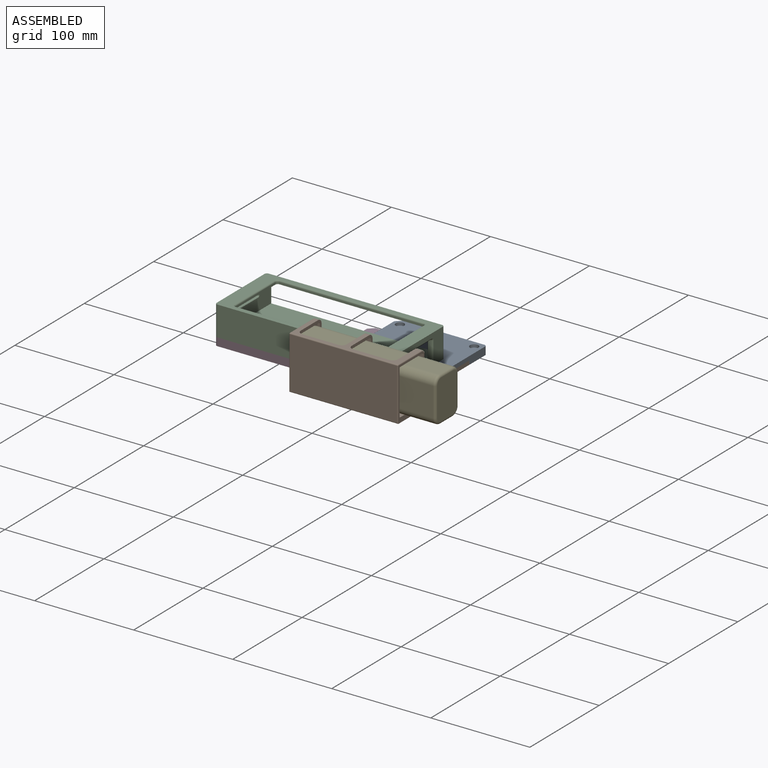
[diagram: assembled view]
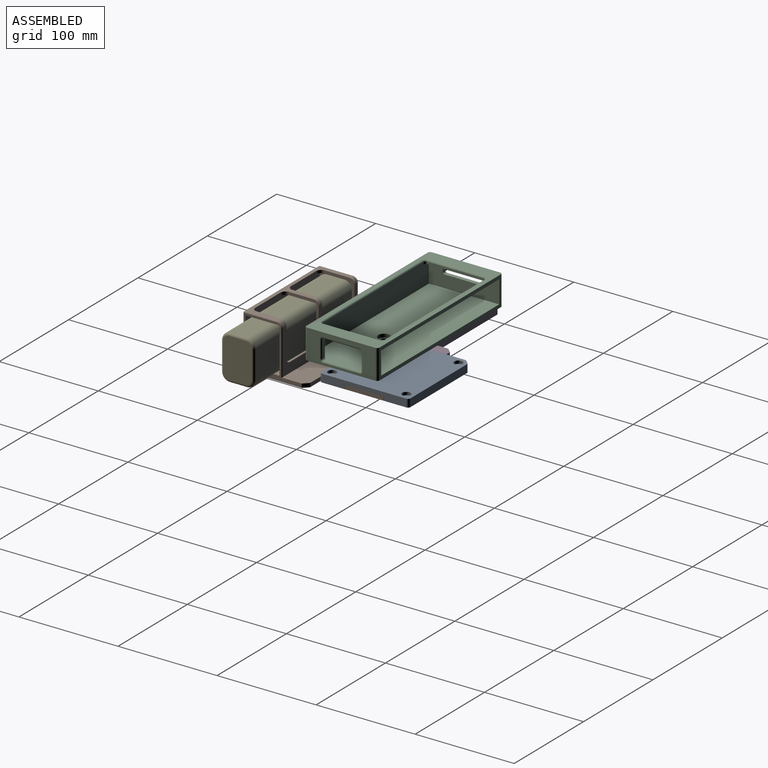
[diagram: assembled view, second angle]
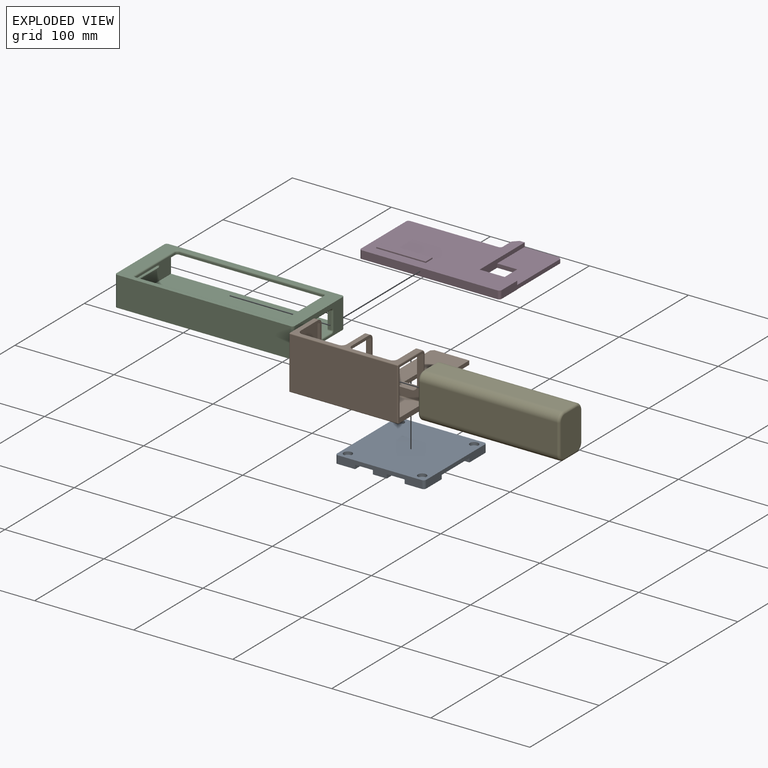
[diagram: exploded view]
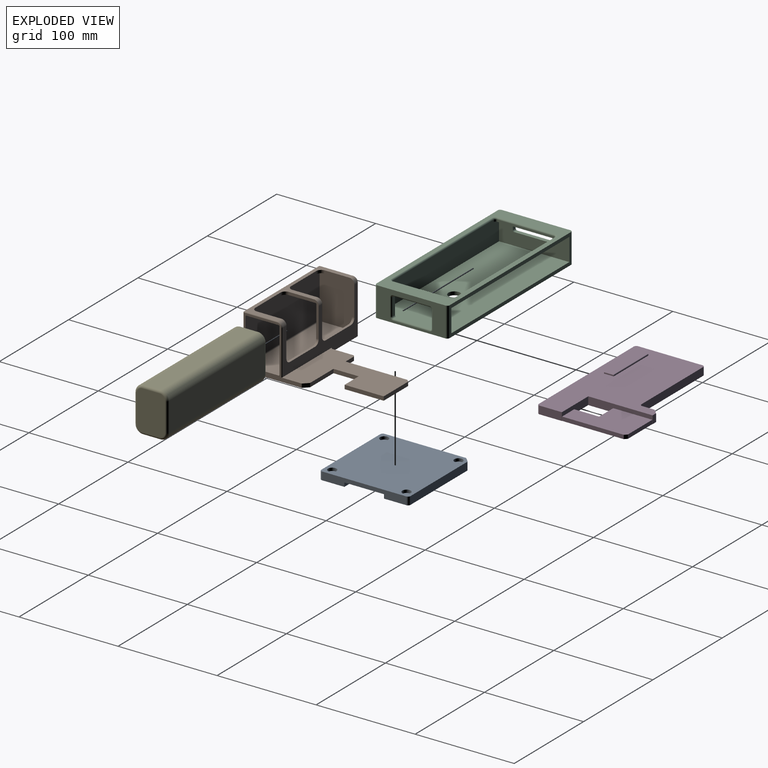
[diagram: exploded view, second angle]
FCSTD DOCUMENT  (FreeCAD 1.0R39109 (Git))
Label: PortableMonitor_asm
License: All rights reserved
LicenseURL: https://en.wikipedia.org/wiki/All_rights_reserved
objects: App::FeaturePython×6, App::Link×5, Assembly::JointGroup×1, Assembly::AssemblyObject×1
EXTERNAL_REF file=PortableMonitor_VESAmount.FCStd obj=Body
EXTERNAL_REF file=PortableMonitor_PhoneBase.FCStd obj=Body
EXTERNAL_REF file=PortableMonitor_BatteryHolder_Base.FCStd obj=Body
EXTERNAL_REF file=cuktech_batt.FCStd obj=Body
EXTERNAL_REF file=PortableMonitor_Phone_Fold3.FCStd obj=Body

FEATURE [App::Link] Body
  LinkedObject = -> <external PortableMonitor_VESAmount.FCStd>#Body
FEATURE [App::FeaturePython] GroundedJoint  # Assembly grounded joint (typed FeaturePython)
  ObjectToGround = -> Body
FEATURE [App::Link] Body_PhoneHouse
  LinkPlacement = pos=(-2.6e-15,1.53e-14,0.05) rot=(0,0,1;0rad)
  LinkedObject = -> <external PortableMonitor_PhoneBase.FCStd>#Body
  Placement = pos=(-2.6e-15,1.53e-14,0.05) rot=(0,0,1;0rad)
FEATURE [App::FeaturePython] Joint  label="고정됨"  # Assembly joint (typed FeaturePython)
  Activated = true
  AngleMax = 0
  AngleMin = 0
  Detach1 = false
  Detach2 = false
  Distance = 0
  Distance2 = 0
  EnableAngleMax = false
  EnableAngleMin = false
  EnableLengthMax = false
  EnableLengthMin = false
  JointType = 0 (Fixed)
  LengthMax = 0
  LengthMin = 0
  Offset2 = pos=(0,0,0) rot=(0,0,1;3.14159rad)
  Placement1 = pos=(-16,-45,4) rot=(-0.707107,0,0.707107;3.14159rad)
  Placement2 = pos=(-16,-45,3.95) rot=(0,-1,0;4.71239rad)
  Reference1 = -> Assembly [Body.Edge6,Body.Edge6]
  Reference2 = -> Assembly [Body_PhoneHouse.Edge57,Body_PhoneHouse.Edge57]
FEATURE [App::FeaturePython] Joint001  label="고정됨001"  # Assembly joint (typed FeaturePython)
  Activated = true
  AngleMax = 0
  AngleMin = 0
  Detach1 = false
  Detach2 = false
  Distance = 0
  Distance2 = 0
  EnableAngleMax = false
  EnableAngleMin = false
  EnableLengthMax = false
  EnableLengthMin = false
  JointType = 0 (Fixed)
  LengthMax = 0
  LengthMin = 0
  Placement1 = pos=(-45,-4.6e-15,3.95) rot=(-0.57735,-0.57735,0.57735;4.18879rad)
  Placement2 = pos=(-45,1.8e-15,4) rot=(0.57735,0.57735,0.57735;4.18879rad)
  Reference1 = -> Assembly [Body_PhoneHouse.Edge49,Body_PhoneHouse.Edge49]
  Reference2 = -> Assembly [Body.Edge3,Body.Edge3]
FEATURE [App::Link] Body_BattHolder_Base
  LinkPlacement = pos=(-7.1e-15,-8.3e-15,0.05) rot=(0,0,1;0rad)
  LinkedObject = -> <external PortableMonitor_BatteryHolder_Base.FCStd>#Body
  Placement = pos=(-7.1e-15,-8.3e-15,0.05) rot=(0,0,1;0rad)
FEATURE [App::Link] cuktech_batt
  LinkPlacement = pos=(-43.65,-89.8,28.05) rot=(0.707107,0,0.707107;3.14159rad)
  LinkedObject = -> <external cuktech_batt.FCStd>#Body
  Placement = pos=(-43.65,-89.8,28.05) rot=(0.707107,0,0.707107;3.14159rad)
FEATURE [App::FeaturePython] Joint002  label="고정됨002"  # Assembly joint (typed FeaturePython)
  Activated = true
  AngleMax = 0
  AngleMin = 0
  Detach1 = false
  Detach2 = false
  Distance = 0
  Distance2 = 0
  EnableAngleMax = false
  EnableAngleMin = false
  EnableLengthMax = false
  EnableLengthMin = false
  JointType = 0 (Fixed)
  LengthMax = 0
  LengthMin = 0
  Placement2 = pos=(-43.65,-89.8,28) rot=(0.707107,0,0.707107;3.14159rad)
  Reference1 = -> Assembly [cuktech_batt.Fillet001.Face9,cuktech_batt.Fillet001.Face9]
  Reference2 = -> Assembly [Body_BattHolder_Base.Pocket001.Face28,Body_BattHolder_Base.Pocket001.Face28]
FEATURE [App::FeaturePython] Joint003  label="고정됨003"  # Assembly joint (typed FeaturePython)
  Activated = true
  AngleMax = 0
  AngleMin = 0
  Detach1 = false
  Detach2 = false
  Distance = 0
  Distance2 = 0
  EnableAngleMax = false
  EnableAngleMin = false
  EnableLengthMax = false
  EnableLengthMin = false
  JointType = 0 (Fixed)
  LengthMax = 0
  LengthMin = 0
  Offset2 = pos=(0,0,0) rot=(0,0,1;3.14159rad)
  Placement1 = pos=(45,1e-16,3.95) rot=(-0.57735,-0.57735,0.57735;4.18879rad)
  Placement2 = pos=(45,1.8e-15,4) rot=(0.57735,-0.57735,-0.57735;4.18879rad)
  Reference1 = -> Assembly [Body_BattHolder_Base.Pocket001.Edge66,Body_BattHolder_Base.Pocket001.Edge66]
  Reference2 = -> Assembly [Body.Chamfer001.Edge72,Body.Chamfer001.Edge72]
FEATURE [App::Link] Body_Fold3
  LinkPlacement = pos=(-59,-33,8.05) rot=(0,0,1;0rad)
  LinkedObject = -> <external PortableMonitor_Phone_Fold3.FCStd>#Body
  Placement = pos=(-59,-33,8.05) rot=(0,0,1;0rad)
FEATURE [App::FeaturePython] Joint004  label="고정됨004"  # Assembly joint (typed FeaturePython)
  Activated = true
  AngleMax = 0
  AngleMin = 0
  Detach1 = false
  Detach2 = false
  Distance = 0
  Distance2 = 0
  EnableAngleMax = false
  EnableAngleMin = false
  EnableLengthMax = false
  EnableLengthMin = false
  JointType = 0 (Fixed)
  LengthMax = 0
  LengthMin = 0
  Offset2 = pos=(0,0,0) rot=(0,0,1;3.14159rad)
  Placement1 = pos=(-139,-55,8) rot=(-0.57735,-0.57735,0.57735;4.18879rad)
  Placement2 = pos=(-80,-22,0) rot=(0.57735,-0.57735,-0.57735;4.18879rad)
  Reference1 = -> Assembly [Body_PhoneHouse.Fillet001.Edge7,Body_PhoneHouse.Fillet001.Edge7]
  Reference2 = -> Assembly [Body_Fold3.Fillet003.Edge85,Body_Fold3.Fillet003.Edge85]
FEATURE [Assembly::JointGroup] Joints
  Group = -> [GroundedJoint,Joint,Joint001,Joint002,Joint003,Joint004]
FEATURE [Assembly::AssemblyObject] Assembly
  Group = -> [Joints,Body,GroundedJoint,Body_PhoneHouse,Joint,Joint001,Body_BattHolder_Base,cuktech_batt,Joint002,Joint003,Body_Fold3,Joint004]
  Origin = -> Origin
  Type = Assembly

RESOLVED EXTERNAL PARTS (link-assembly join: the EXTERNAL_REF files above that resolve inside this repo's crawl, each included once):
---- part PortableMonitor_BatteryHolder_Base.FCStd = doc fcstd_04ce67612702 ----
FCSTD DOCUMENT  (FreeCAD 1.0R39109 (Git))
Label: PortableMonitor_BatteryHolder_Base
License: All rights reserved
LicenseURL: https://en.wikipedia.org/wiki/All_rights_reserved
objects: Sketcher::SketchObject×4, PartDesign::Fillet×4, PartDesign::Pad×2, PartDesign::Pocket×2, PartDesign::Chamfer×2, PartDesign::Body×1
note: 39 computed .brp shape members not serialized (recipe doc carries the construction recipe); baked Part::Feature solids carry a one-line shape summary decoded from their .brp

FEATURE [Sketcher::SketchObject] Sketch  label="Sketch_BasePad_mateWithVESA"
  ArcFitTolerance = 1e-06
  AttachmentSupport = -> [XY_Plane]
  FullyConstrained = true
  MakeInternals = false
  MapMode = 5
  sketch-geometry (21):
    g0: LineSegment [constr] StartX=-45 StartY=-45 StartZ=0 EndX=45 EndY=-45 EndZ=0
    g1: LineSegment [constr] StartX=45 StartY=-45 StartZ=0 EndX=45 EndY=45 EndZ=0
    g2: LineSegment [constr] StartX=45 StartY=45 StartZ=0 EndX=-45 EndY=45 EndZ=0
    g3: LineSegment [constr] StartX=-45 StartY=45 StartZ=0 EndX=-45 EndY=-45 EndZ=0
    g4: GeomPoint [constr] X=0 Y=0 Z=0
    g5: GeomPoint [constr] X=7.25 Y=-45 Z=0
    g6: GeomPoint [constr] X=45 Y=19.75 Z=0
    g7: LineSegment [constr] StartX=7.25 StartY=-45 StartZ=0 EndX=7.25 EndY=19.75 EndZ=0
    g8: LineSegment StartX=7.25 StartY=19.75 StartZ=0 EndX=45 EndY=19.75 EndZ=0
    g9: LineSegment StartX=45 StartY=-19.75 StartZ=0 EndX=24.75 EndY=-19.75 EndZ=0
    g10: LineSegment [constr] StartX=24.75 StartY=-19.75 StartZ=0 EndX=24.75 EndY=-45 EndZ=0
    g11: LineSegment StartX=7.25 StartY=19.75 StartZ=0 EndX=7.25 EndY=-45.2 EndZ=0
    g12: LineSegment StartX=45 StartY=19.75 StartZ=0 EndX=45 EndY=-19.75 EndZ=0
    g13: LineSegment StartX=24.75 StartY=-45.2 StartZ=0 EndX=24.75 EndY=-19.75 EndZ=0
    g14: LineSegment StartX=-6.65 StartY=-45.2 StartZ=0 EndX=7.25 EndY=-45.2 EndZ=0
    g15: LineSegment StartX=-6.65 StartY=-70.2 StartZ=0 EndX=-6.65 EndY=-45.2 EndZ=0
    g16: LineSegment StartX=-46.65 StartY=-70.2 StartZ=0 EndX=-6.65 EndY=-70.2 EndZ=0
    g17: LineSegment StartX=-46.65 StartY=-70.2 StartZ=0 EndX=-46.65 EndY=-109.5 EndZ=0
    g18: LineSegment StartX=-46.65 StartY=-109.5 StartZ=0 EndX=63.35 EndY=-109.5 EndZ=0
    g19: LineSegment StartX=63.35 StartY=-109.5 StartZ=0 EndX=63.35 EndY=-45.2 EndZ=0
    g20: LineSegment StartX=63.35 StartY=-45.2 StartZ=0 EndX=24.75 EndY=-45.2 EndZ=0
  constraints (60):
    c: Coincident(g0,g1)
    c: Coincident(g1,g2)
    c: Coincident(g2,g3)
    c: Coincident(g3,g0)
    c: Horizontal(g0)
    c: Horizontal(g2)
    c: Vertical(g1)
    c: Vertical(g3)
    c: Symmetric(g2,g0,g4)
    c: Distance(g1,g3) = 90
    c: Distance(g0,g2) = 90
    c: Coincident(g4,g-1)
    c: PointOnObject(g5,g0)
    c: Distance(g5,g-2) = 7.25
    c: PointOnObject(g6,g1)
    c: Distance(g6,g-1) = 19.75
    c: Distance(g7) = 64.75
    c: Coincident(g7,g5)
    c: Vertical(g7)
    c: Coincident(g8,g7)
    c: Coincident(g8,g6)
    c: PointOnObject(g10,g0)
    c: PointOnObject(g9,g1)
    c: Horizontal(g9)
    c: Coincident(g10,g9)
    c: DistanceX(g5,g10) = 17.5
    c: Distance(g9,g8) = 39.5
    c: DistanceX(g9,g9) = 20.25
    c: Distance(g11) = 64.95
    c: Coincident(g11,g7)
    c: PointOnObject(g11,g7)
    c: Coincident(g12,g6)
    c: Coincident(g12,g9)
    c: DistanceY(g10,g10) = 25.25
    c: Distance(g13) = 25.45
    c: Vertical(g13)
    c: Coincident(g13,g9)
    c: Distance(g14) = 13.9
    c: Horizontal(g14)
    c: Coincident(g14,g11)
    c: Distance(g15) = 25
    c: Vertical(g15)
    c: Coincident(g15,g14)
    c: Distance(g16) = 40
    c: Horizontal(g16)
    c: Coincident(g16,g15)
    c: Distance(g17) = 39.3
    c: Coincident(g17,g16)
    c: Vertical(g17)
    c: Distance(g18) = 110
    c: Coincident(g18,g17)
    c: Horizontal(g18)
    c: Distance(g19) = 64.3
    c: Coincident(g19,g18)
    c: Vertical(g19)
    c: Coincident(g20,g19)
    c: Coincident(g20,g13)
    c: DistanceY(g17,g4) = 109.5
    c: DistanceX(g17,g4) = 46.65
    c: Distance(g18,g0) = 64.5
FEATURE [PartDesign::Pad] Pad  label="BasePad_mateWithVESA"
  Direction = (0,0,1)
  Length = 3.95
  Length2 = 10
  Profile = -> Sketch
  ReferenceAxis = -> Sketch [N_Axis]
  Refine = true
  Suppressed = false
  Type = 0
FEATURE [Sketcher::SketchObject] Sketch001  label="Sketch_Batt_area"
  ArcFitTolerance = 1e-06
  AttachmentSupport = -> [Pad]
  FullyConstrained = true
  MakeInternals = false
  MapMode = 5
  Placement = pos=(0,0,3.95) rot=(0,0,1;0rad)
  sketch-geometry (16):
    g0: GeomPoint [constr] X=-46.65 Y=-109.5 Z=0
    g1: LineSegment [constr] StartX=-46.65 StartY=-109.5 StartZ=0 EndX=63.35 EndY=-109.5 EndZ=0
    g2: LineSegment [constr] StartX=63.35 StartY=-109.5 StartZ=0 EndX=63.35 EndY=-70.2 EndZ=0
    g3: LineSegment [constr] StartX=63.35 StartY=-70.2 StartZ=0 EndX=-46.65 EndY=-70.2 EndZ=0
    g4: LineSegment [constr] StartX=-46.65 StartY=-70.2 StartZ=0 EndX=-46.65 EndY=-109.5 EndZ=0
    g5: GeomPoint [constr] X=8.35 Y=-89.85 Z=0
    g6: LineSegment [constr] StartX=-38.15 StartY=-106.55 StartZ=0 EndX=104.85 EndY=-106.55 EndZ=0
    g7: LineSegment [constr] StartX=104.85 StartY=-106.55 StartZ=0 EndX=104.85 EndY=-73.15 EndZ=0
    g8: LineSegment [constr] StartX=104.85 StartY=-73.15 StartZ=0 EndX=-38.15 EndY=-73.15 EndZ=0
    g9: LineSegment [constr] StartX=-38.15 StartY=-73.15 StartZ=0 EndX=-38.15 EndY=-106.55 EndZ=0
    g10: GeomPoint [constr] X=33.35 Y=-89.85 Z=0
    g11: LineSegment StartX=-46.65 StartY=-109.5 StartZ=0 EndX=63.35 EndY=-109.5 EndZ=0
    g12: LineSegment StartX=63.35 StartY=-109.5 StartZ=0 EndX=63.35 EndY=-70.2 EndZ=0
    g13: LineSegment StartX=63.35 StartY=-70.2 StartZ=0 EndX=-46.65 EndY=-70.2 EndZ=0
    g14: LineSegment StartX=-46.65 StartY=-70.2 StartZ=0 EndX=-46.65 EndY=-109.5 EndZ=0
    g15: GeomPoint [constr] X=8.35 Y=-89.85 Z=0
  constraints (38):
    c: DistanceY(g0,g-1) = 109.5
    c: DistanceX(g0,g-1) = 46.65
    c: Coincident(g1,g2)
    c: Coincident(g2,g3)
    c: Coincident(g3,g4)
    c: Coincident(g4,g1)
    c: Horizontal(g1)
    c: Horizontal(g3)
    c: Vertical(g2)
    c: Vertical(g4)
    c: Symmetric(g3,g1,g5)
    c: Distance(g2,g4) = 110
    c: Distance(g1,g3) = 39.3
    c: Coincident(g1,g0)
    c: Coincident(g6,g7)
    c: Coincident(g7,g8)
    c: Coincident(g8,g9)
    c: Coincident(g9,g6)
    c: Horizontal(g6)
    c: Horizontal(g8)
    c: Vertical(g7)
    c: Vertical(g9)
    c: Symmetric(g8,g6,g10)
    c: Distance(g7,g9) = 143
    c: Distance(g6,g8) = 33.4
    c: Horizontal(g10,g5)
    c: DistanceX(g5,g10) = 25
    c: Coincident(g11,g12)
    c: Coincident(g12,g13)
    c: Coincident(g13,g14)
    c: Coincident(g14,g11)
    c: Horizontal(g11)
    c: Horizontal(g13)
    c: Vertical(g12)
    c: Vertical(g14)
    c: Symmetric(g13,g11,g15)
    c: Coincident(g15,g5)
    c: Coincident(g12,g2)
FEATURE [PartDesign::Pad] Pad001  label="Batt_area"
  BaseFeature = -> Pad
  Direction = (0,0,1)
  Length = 50
  Length2 = 10
  Profile = -> Sketch001
  ReferenceAxis = -> Sketch001 [N_Axis]
  Refine = true
  Suppressed = false
  Type = 0
FEATURE [Sketcher::SketchObject] Sketch002  label="Sketch_Hole_Batt_Placement"
  ArcFitTolerance = 1e-06
  AttachmentSupport = -> [Pad001]
  FullyConstrained = true
  MakeInternals = false
  MapMode = 5
  Placement = pos=(63.35,0,0) rot=(0.57735,0.57735,0.57735;2.0944rad)
  sketch-geometry (6):
    g0: GeomPoint X=-109.5 Y=0 Z=0
    g1: LineSegment StartX=-107 StartY=5 StartZ=0 EndX=-72.6 EndY=5 EndZ=0
    g2: LineSegment StartX=-72.6 StartY=5 StartZ=0 EndX=-72.6 EndY=51 EndZ=0
    g3: LineSegment StartX=-72.6 StartY=51 StartZ=0 EndX=-107 EndY=51 EndZ=0
    g4: LineSegment StartX=-107 StartY=51 StartZ=0 EndX=-107 EndY=5 EndZ=0
    g5: GeomPoint [constr] X=-89.8 Y=28 Z=0
  constraints (16):
    c: PointOnObject(g0,g-1)
    c: DistanceX(g0,g-1) = 109.5
    c: Coincident(g1,g2)
    c: Coincident(g2,g3)
    c: Coincident(g3,g4)
    c: Coincident(g4,g1)
    c: Horizontal(g1)
    c: Horizontal(g3)
    c: Vertical(g2)
    c: Vertical(g4)
    c: Symmetric(g3,g1,g5)
    c: Distance(g2,g4) = 34.4
    c: Distance(g1,g3) = 46
    c: Distance(g1,g-1) = 5
    c: DistanceX(g0,g1) = 2.5
    c: Distance(g-2,g2) = 72.6
FEATURE [PartDesign::Pocket] Pocket  label="Hole_Batt_Placement"
  BaseFeature = -> Pad001
  Direction = (-1,0,0)
  Length = 107
  Length2 = 5
  Profile = -> Sketch002
  ReferenceAxis = -> Sketch002 [N_Axis]
  Refine = true
  Suppressed = false
  Type = 0
FEATURE [Sketcher::SketchObject] Sketch003  label="Sketch_Hole_BattWindowFrame"
  ArcFitTolerance = 1e-06
  AttachmentSupport = -> [Pocket]
  FullyConstrained = true
  MakeInternals = false
  MapMode = 5
  Placement = pos=(0,0,53.95) rot=(0,0,1;0rad)
  sketch-geometry (11):
    g0: GeomPoint X=-46.65 Y=-109.5 Z=0
    g1: LineSegment StartX=-41.15 StartY=-105.2 StartZ=0 EndX=5.35 EndY=-105.2 EndZ=0
    g2: LineSegment StartX=5.35 StartY=-105.2 StartZ=0 EndX=5.35 EndY=-70.2 EndZ=0
    g3: LineSegment StartX=5.35 StartY=-70.2 StartZ=0 EndX=-41.15 EndY=-70.2 EndZ=0
    g4: LineSegment StartX=-41.15 StartY=-70.2 StartZ=0 EndX=-41.15 EndY=-105.2 EndZ=0
    g5: GeomPoint [constr] X=-17.9 Y=-87.7 Z=0
    g6: LineSegment StartX=10.35 StartY=-105.2 StartZ=0 EndX=56.85 EndY=-105.2 EndZ=0
    g7: LineSegment StartX=56.85 StartY=-105.2 StartZ=0 EndX=56.85 EndY=-70.2 EndZ=0
    g8: LineSegment StartX=56.85 StartY=-70.2 StartZ=0 EndX=10.35 EndY=-70.2 EndZ=0
    g9: LineSegment StartX=10.35 StartY=-70.2 StartZ=0 EndX=10.35 EndY=-105.2 EndZ=0
    g10: GeomPoint [constr] X=33.6 Y=-87.7 Z=0
  constraints (28):
    c: DistanceY(g0,g-1) = 109.5
    c: DistanceX(g0,g-1) = 46.65
    c: Coincident(g1,g2)
    c: Coincident(g2,g3)
    c: Coincident(g3,g4)
    c: Coincident(g4,g1)
    c: Horizontal(g1)
    c: Horizontal(g3)
    c: Vertical(g2)
    c: Vertical(g4)
    c: Symmetric(g3,g1,g5)
    c: Distance(g2,g4) = 46.5
    c: Distance(g1,g3) = 35
    c: DistanceX(g0,g1) = 5.5
    c: Distance(g0,g1) = 4.3
    c: Coincident(g6,g7)
    c: Coincident(g7,g8)
    c: Coincident(g8,g9)
    c: Coincident(g9,g6)
    c: Horizontal(g6)
    c: Horizontal(g8)
    c: Vertical(g7)
    c: Vertical(g9)
    c: Symmetric(g8,g6,g10)
    c: Distance(g7,g9) = 46.5
    c: Distance(g6,g8) = 35
    c: Horizontal(g10,g5)
    c: Distance(g9,g2) = 5
FEATURE [PartDesign::Pocket] Pocket001  label="Hole_BattWindowFrame"
  BaseFeature = -> Pocket
  Direction = (0,0,-1)
  Length = 40
  Length2 = 5
  Profile = -> Sketch003
  ReferenceAxis = -> Sketch003 [N_Axis]
  Refine = true
  Suppressed = false
  Type = 0
FEATURE [PartDesign::Chamfer] Chamfer  label="Chamfer_BH_VESAmountInner"
  Angle = 45
  Base = -> Pocket001 [Edge84]
  BaseFeature = -> Pocket001
  ChamferType = 0
  FlipDirection = false
  Refine = true
  Size = 2.5
  Size2 = 1
  SupportTransform = false
  Suppressed = false
  UseAllEdges = false
FEATURE [PartDesign::Chamfer] Chamfer001  label="Chamfer_BH_RightIDX"
  Angle = 45
  Base = -> Chamfer [Edge47]
  BaseFeature = -> Chamfer
  ChamferType = 0
  FlipDirection = false
  Refine = true
  Size = 5
  Size2 = 1
  SupportTransform = false
  Suppressed = false
  UseAllEdges = false
FEATURE [PartDesign::Fillet] Fillet  label="Fillet_BH_mount"
  Base = -> Chamfer001 [Edge53,Edge40]
  BaseFeature = -> Chamfer001
  Radius = 2.5
  Refine = true
  SupportTransform = false
  Suppressed = false
  UseAllEdges = false
FEATURE [PartDesign::Fillet] Fillet001  label="Fillet_BATTPlaceInner"
  Base = -> Fillet [Edge96,Edge89,Edge90,Edge92,Edge93,Edge94]
  BaseFeature = -> Fillet
  Radius = 1
  Refine = true
  SupportTransform = false
  Suppressed = false
  UseAllEdges = false
FEATURE [PartDesign::Fillet] Fillet002  label="Fillet_BATTWindow"
  Base = -> Fillet001 [Edge102,Edge108,Edge105,Edge99,Edge103,Edge106,Edge101,Edge98,Edge80,Edge84,Edge88]
  BaseFeature = -> Fillet001
  Radius = 5
  Refine = true
  SupportTransform = false
  Suppressed = false
  UseAllEdges = false
FEATURE [PartDesign::Fillet] Fillet003  label="Fillet_CornerEdge"
  Base = -> Fillet002 [Edge18,Edge33,Edge3,Edge16,Edge118,Edge35,Edge4,Edge2,Edge1,Edge34]
  BaseFeature = -> Fillet002
  Radius = 1
  Refine = true
  SupportTransform = false
  Suppressed = false
  UseAllEdges = false
FEATURE [PartDesign::Body] Body  label="Body_BattHolder_Base"
  AllowCompound = false
  Group = -> [Sketch,Pad,Sketch001,Pad001,Sketch002,Pocket,Sketch003,Pocket001,Chamfer,Chamfer001,Fillet,Fillet001,Fillet002,Fillet003]
  Origin = -> Origin
  Tip = -> Fillet003
---- part PortableMonitor_PhoneBase.FCStd = doc fcstd_657d6b012f36 ----
FCSTD DOCUMENT  (FreeCAD 1.0R39109 (Git))
Label: PortableMonitor_PhoneBase
License: All rights reserved
LicenseURL: https://en.wikipedia.org/wiki/All_rights_reserved
objects: Sketcher::SketchObject×3, PartDesign::Pad×3, PartDesign::Chamfer×2, PartDesign::Fillet×2, PartDesign::Body×1
note: 28 computed .brp shape members not serialized (recipe doc carries the construction recipe); baked Part::Feature solids carry a one-line shape summary decoded from their .brp

FEATURE [Sketcher::SketchObject] Sketch  label="Sketch_Base_mateWithVESA"
  ArcFitTolerance = 1e-06
  AttachmentSupport = -> [XY_Plane]
  FullyConstrained = true
  MakeInternals = false
  MapMode = 5
  sketch-geometry (20):
    g0: LineSegment [constr] StartX=-45 StartY=-45 StartZ=0 EndX=45 EndY=-45 EndZ=0
    g1: LineSegment [constr] StartX=45 StartY=-45 StartZ=0 EndX=45 EndY=45 EndZ=0
    g2: LineSegment [constr] StartX=45 StartY=45 StartZ=0 EndX=-45 EndY=45 EndZ=0
    g3: LineSegment [constr] StartX=-45 StartY=45 StartZ=0 EndX=-45 EndY=-45 EndZ=0
    g4: GeomPoint [constr] X=0 Y=0 Z=0
    g5: LineSegment [constr] StartX=-45 StartY=-20 StartZ=0 EndX=-25 EndY=-20 EndZ=0
    g6: LineSegment [constr] StartX=-25 StartY=-20 StartZ=0 EndX=-25 EndY=-45 EndZ=0
    g7: LineSegment [constr] StartX=-45 StartY=20 StartZ=0 EndX=-7 EndY=20 EndZ=0
    g8: LineSegment [constr] StartX=-7 StartY=20 StartZ=0 EndX=-7 EndY=-45 EndZ=0
    g9: GeomPoint [constr] X=-45 Y=-5e-16 Z=0
    g10: GeomPoint [constr] X=-16 Y=-45 Z=0
    g11: LineSegment StartX=-45 StartY=19.75 StartZ=0 EndX=-45 EndY=-19.75 EndZ=0
    g12: GeomPoint X=-45 Y=-5e-16 Z=0
    g13: LineSegment StartX=-24.75 StartY=-45 StartZ=0 EndX=-7.25 EndY=-45 EndZ=0
    g14: GeomPoint X=-16 Y=-45 Z=0
    g15: LineSegment StartX=-45 StartY=-19.75 StartZ=0 EndX=-24.75 EndY=-19.75 EndZ=0
    g16: LineSegment StartX=-24.75 StartY=-19.75 StartZ=0 EndX=-24.75 EndY=-45 EndZ=0
    g17: LineSegment StartX=-7.25 StartY=-45 StartZ=0 EndX=-7.25 EndY=19.75 EndZ=0
    g18: GeomPoint [constr] X=-7.25 Y=19.75 Z=0
    g19: LineSegment StartX=-45 StartY=19.75 StartZ=0 EndX=-7.25 EndY=19.75 EndZ=0
  constraints (49):
    c: Coincident(g0,g1)
    c: Coincident(g1,g2)
    c: Coincident(g2,g3)
    c: Coincident(g3,g0)
    c: Horizontal(g0)
    c: Horizontal(g2)
    c: Vertical(g1)
    c: Vertical(g3)
    c: Symmetric(g2,g0,g4)
    c: Distance(g1,g3) = 90
    c: Distance(g0,g2) = 90
    c: Coincident(g4,g-1)
    c: Distance(g5) = 20
    c: Horizontal(g5)
    c: PointOnObject(g5,g3)
    c: Distance(g6) = 25
    c: Coincident(g6,g5)
    c: PointOnObject(g6,g0)
    c: Vertical(g6)
    c: Distance(g7) = 38
    c: Horizontal(g7)
    c: PointOnObject(g7,g3)
    c: Distance(g5,g7) = 40
    c: Coincident(g8,g7)
    c: PointOnObject(g8,g0)
    c: Vertical(g8)
    c: Distance(g8,g6) = 18
    c: Symmetric(g3,g3,g9)
    c: PointOnObject(g10,g0)
    c: DistanceX(g10,g4) = 16
    c: Distance(g11) = 39.5
    c: Vertical(g11)
    c: Symmetric(g11,g11,g12)
    c: Coincident(g12,g9)
    c: Distance(g13) = 17.5
    c: Horizontal(g13)
    c: Symmetric(g13,g13,g14)
    c: Coincident(g14,g10)
    c: Horizontal(g15)
    c: Coincident(g15,g11)
    c: DistanceX(g15,g15) = 20.25
    c: Coincident(g16,g15)
    c: Coincident(g16,g13)
    c: DistanceY(g18,g7) = 0.25
    c: DistanceX(g18,g7) = 0.25
    c: Coincident(g17,g18)
    c: Coincident(g17,g13)
    c: Coincident(g19,g11)
    c: Coincident(g19,g17)
FEATURE [PartDesign::Pad] Pad  label="Base_mateWithVESA"
  Direction = (0,0,1)
  Length = 3.95
  Length2 = 10
  Profile = -> Sketch
  ReferenceAxis = -> Sketch [N_Axis]
  Refine = true
  Suppressed = false
  Type = 0
FEATURE [Sketcher::SketchObject] Sketch002  label="Sketch_Base_PhonePlaceMent"
  ArcFitTolerance = 1e-06
  AttachmentSupport = -> [XY_Plane]
  FullyConstrained = true
  MakeInternals = false
  MapMode = 5
  sketch-geometry (34):
    g0: LineSegment [constr] StartX=-45 StartY=-45 StartZ=0 EndX=45 EndY=-45 EndZ=0
    g1: LineSegment [constr] StartX=45 StartY=-45 StartZ=0 EndX=45 EndY=45 EndZ=0
    g2: LineSegment [constr] StartX=45 StartY=45 StartZ=0 EndX=-45 EndY=45 EndZ=0
    g3: LineSegment [constr] StartX=-45 StartY=45 StartZ=0 EndX=-45 EndY=-45 EndZ=0
    g4: GeomPoint [constr] X=0 Y=0 Z=0
    g5: LineSegment [constr] StartX=-45 StartY=-20 StartZ=0 EndX=-25 EndY=-20 EndZ=0
    g6: LineSegment [constr] StartX=-25 StartY=-20 StartZ=0 EndX=-25 EndY=-45 EndZ=0
    g7: LineSegment [constr] StartX=-45 StartY=20 StartZ=0 EndX=-7 EndY=20 EndZ=0
    g8: LineSegment [constr] StartX=-7 StartY=20 StartZ=0 EndX=-7 EndY=-45 EndZ=0
    g9: GeomPoint [constr] X=-45 Y=1.1e-15 Z=0
    g10: GeomPoint [constr] X=-16 Y=-45 Z=0
    g11: LineSegment [constr] StartX=-45 StartY=19.75 StartZ=0 EndX=-45 EndY=-19.75 EndZ=0
    g12: GeomPoint [constr] X=-45 Y=1.1e-15 Z=0
    g13: LineSegment [constr] StartX=-24.75 StartY=-45 StartZ=0 EndX=-7.25 EndY=-45 EndZ=0
    g14: GeomPoint [constr] X=-16 Y=-45 Z=0
    g15: LineSegment [constr] StartX=-45 StartY=-19.75 StartZ=0 EndX=-24.75 EndY=-19.75 EndZ=0
    g16: LineSegment [constr] StartX=-24.75 StartY=-19.75 StartZ=0 EndX=-24.75 EndY=-45 EndZ=0
    g17: LineSegment [constr] StartX=-7.25 StartY=-45 StartZ=0 EndX=-7.25 EndY=19.75 EndZ=0
    g18: GeomPoint [constr] X=-7.25 Y=19.75 Z=0
    g19: LineSegment [constr] StartX=-45 StartY=19.75 StartZ=0 EndX=-7.25 EndY=19.75 EndZ=0
    g20: LineSegment [constr] StartX=-7.25 StartY=-45 StartZ=0 EndX=-7 EndY=-45 EndZ=0
    g21: LineSegment [constr] StartX=-37.5 StartY=-37.5 StartZ=0 EndX=37.5 EndY=-37.5 EndZ=0
    g22: LineSegment [constr] StartX=37.5 StartY=-37.5 StartZ=0 EndX=37.5 EndY=37.5 EndZ=0
    g23: LineSegment [constr] StartX=37.5 StartY=37.5 StartZ=0 EndX=-37.5 EndY=37.5 EndZ=0
    g24: LineSegment [constr] StartX=-37.5 StartY=37.5 StartZ=0 EndX=-37.5 EndY=-37.5 EndZ=0
    g25: GeomPoint [constr] X=0 Y=0 Z=0
    g26: LineSegment StartX=-45 StartY=20 StartZ=0 EndX=-55 EndY=20 EndZ=0
    g27: LineSegment StartX=-149 StartY=-70 StartZ=0 EndX=-149 EndY=0 EndZ=0
    g28: LineSegment StartX=-55 StartY=20 StartZ=0 EndX=-55 EndY=0 EndZ=0
    g29: LineSegment StartX=-149 StartY=0 StartZ=0 EndX=-55 EndY=0 EndZ=0
    g30: LineSegment StartX=-45 StartY=20 StartZ=0 EndX=-45 EndY=-45 EndZ=0
    g31: LineSegment StartX=-45 StartY=-45 StartZ=0 EndX=-7 EndY=-45 EndZ=0
    g32: LineSegment StartX=-7 StartY=-45 StartZ=0 EndX=-7 EndY=-70 EndZ=0
    g33: LineSegment StartX=-7 StartY=-70 StartZ=0 EndX=-149 EndY=-70 EndZ=0
  constraints (88):
    c: Coincident(g0,g1)
    c: Coincident(g1,g2)
    c: Coincident(g2,g3)
    c: Coincident(g3,g0)
    c: Horizontal(g0)
    c: Horizontal(g2)
    c: Vertical(g1)
    c: Vertical(g3)
    c: Symmetric(g2,g0,g4)
    c: Distance(g1,g3) = 90
    c: Distance(g0,g2) = 90
    c: Coincident(g4,g-1)
    c: Distance(g5) = 20
    c: Horizontal(g5)
    c: PointOnObject(g5,g3)
    c: Distance(g6) = 25
    c: Coincident(g6,g5)
    c: PointOnObject(g6,g0)
    c: Vertical(g6)
    c: Distance(g7) = 38
    c: Horizontal(g7)
    c: PointOnObject(g7,g3)
    c: Distance(g5,g7) = 40
    c: Coincident(g8,g7)
    c: PointOnObject(g8,g0)
    c: Vertical(g8)
    c: Distance(g8,g6) = 18
    c: Symmetric(g3,g3,g9)
    c: PointOnObject(g10,g0)
    c: DistanceX(g10,g4) = 16
    c: Distance(g11) = 39.5
    c: Vertical(g11)
    c: Symmetric(g11,g11,g12)
    c: Coincident(g12,g9)
    c: Distance(g13) = 17.5
    c: Horizontal(g13)
    c: Symmetric(g13,g13,g14)
    c: Coincident(g14,g10)
    c: Horizontal(g15)
    c: Coincident(g15,g11)
    c: DistanceX(g15,g15) = 20.25
    c: Coincident(g16,g15)
    c: Coincident(g16,g13)
    c: DistanceY(g18,g7) = 0.25
    c: DistanceX(g18,g7) = 0.25
    c: Coincident(g17,g18)
    c: Coincident(g17,g13)
    c: Coincident(g19,g11)
    c: Coincident(g19,g17)
    c: Coincident(g20,g13)
    c: Coincident(g20,g8)
    c: Coincident(g21,g22)
    c: Coincident(g22,g23)
    c: Coincident(g23,g24)
    c: Coincident(g24,g21)
    c: Horizontal(g21)
    c: Horizontal(g23)
    c: Vertical(g22)
    c: Vertical(g24)
    c: Symmetric(g23,g21,g25)
    c: Distance(g22,g24) = 75
    c: Distance(g21,g23) = 75
    c: Coincident(g25,g4)
    c: Distance(g26) = 10
    c: Coincident(g26,g7)
    c: Horizontal(g26)
    c: PointOnObject(g27,g-1)
    c: Vertical(g27)
    c: Coincident(g28,g26)
    c: PointOnObject(g28,g-1)
    c: Vertical(g28)
    c: Coincident(g29,g27)
    c: Coincident(g29,g28)
    c: Coincident(g30,g7)
    c: Coincident(g30,g0)
    c: Distance(g31) = 38
    c: Coincident(g31,g0)
    c: PointOnObject(g31,g0)
    c: Distance(g32) = 25
    c: Coincident(g32,g31)
    c: Vertical(g32)
    c: Coincident(g33,g32)
    c: Coincident(g33,g27)
    c: Horizontal(g33)
    c: DistanceX(g29,g29) = 94
    c: DistanceX(g33,g33) = 142
    c: DistanceX(g27,g4) = 149
    c: DistanceY(g27,g27) = 70
FEATURE [PartDesign::Pad] Pad001  label="Base_PhonePlaceMent"
  BaseFeature = -> Pad
  Direction = (0,0,1)
  Length = 8
  Length2 = 10
  Profile = -> Sketch002
  ReferenceAxis = -> Sketch002 [N_Axis]
  Refine = true
  Suppressed = false
  Type = 0
FEATURE [Sketcher::SketchObject] Sketch003  label="Sketch_Hole_MatePhone"
  ArcFitTolerance = 1e-06
  AttachmentSupport = -> [Pad001]
  FullyConstrained = true
  MakeInternals = false
  MapMode = 5
  Placement = pos=(0,0,8) rot=(0,0,1;0rad)
  sketch-geometry (7):
    g0: GeomPoint [constr] X=-149 Y=-70 Z=0
    g1: GeomPoint [constr] X=-139 Y=-59.9 Z=0
    g2: LineSegment StartX=-139 StartY=-59.9 StartZ=0 EndX=-89 EndY=-59.9 EndZ=0
    g3: LineSegment StartX=-89 StartY=-59.9 StartZ=0 EndX=-89 EndY=-50.1 EndZ=0
    g4: LineSegment StartX=-89 StartY=-50.1 StartZ=0 EndX=-139 EndY=-50.1 EndZ=0
    g5: LineSegment StartX=-139 StartY=-50.1 StartZ=0 EndX=-139 EndY=-59.9 EndZ=0
    g6: GeomPoint [constr] X=-114 Y=-55 Z=0
  constraints (16):
    c: DistanceX(g0,g-1) = 149
    c: Distance(g0,g-1) = 70
    c: DistanceX(g0,g1) = 10
    c: Coincident(g2,g3)
    c: Coincident(g3,g4)
    c: Coincident(g4,g5)
    c: Coincident(g5,g2)
    c: Horizontal(g2)
    c: Horizontal(g4)
    c: Vertical(g3)
    c: Vertical(g5)
    c: Symmetric(g4,g2,g6)
    c: Distance(g3,g5) = 50
    c: Distance(g2,g4) = 9.8
    c: Coincident(g2,g1)
    c: DistanceY(g0,g6) = 15
FEATURE [PartDesign::Pad] Pad002  label="MatePhone"
  BaseFeature = -> Pad001
  Direction = (0,0,1)
  Length = 1.5
  Length2 = 10
  Profile = -> Sketch003
  ReferenceAxis = -> Sketch003 [N_Axis]
  Refine = true
  Suppressed = false
  Type = 0
FEATURE [PartDesign::Chamfer] Chamfer  label="Chamfer_VESAMountInner"
  Angle = 45
  Base = -> Pad002 [Edge28]
  BaseFeature = -> Pad002
  ChamferType = 0
  FlipDirection = false
  Refine = true
  Size = 2.5
  Size2 = 1
  SupportTransform = false
  Suppressed = false
  UseAllEdges = false
FEATURE [PartDesign::Chamfer] Chamfer001  label="Chamfer_PhoneHouseIdx"
  Angle = 45
  Base = -> Chamfer [Edge36]
  BaseFeature = -> Chamfer
  ChamferType = 0
  FlipDirection = false
  Refine = true
  Size = 5
  Size2 = 1
  SupportTransform = false
  Suppressed = false
  UseAllEdges = false
FEATURE [PartDesign::Fillet] Fillet  label="Fillet_PhoneHouseCorner"
  Base = -> Chamfer001 [Edge27,Edge31,Edge35,Edge39]
  BaseFeature = -> Chamfer001
  Radius = 2.5
  Refine = true
  SupportTransform = false
  Suppressed = false
  UseAllEdges = false
FEATURE [PartDesign::Fillet] Fillet001  label="Fillet_Mount"
  Base = -> Fillet [Edge67,Edge69,Edge71,Edge72]
  BaseFeature = -> Fillet
  Radius = 0.5
  Refine = true
  SupportTransform = false
  Suppressed = false
  UseAllEdges = false
FEATURE [PartDesign::Body] Body  label="Body_PhoneHouse"
  AllowCompound = false
  Group = -> [Sketch,Pad,Sketch002,Pad001,Sketch003,Pad002,Chamfer,Chamfer001,Fillet,Fillet001]
  Origin = -> Origin
  Tip = -> Fillet001
---- part PortableMonitor_Phone_Fold3.FCStd = doc fcstd_b1c044ef5a83 ----
FCSTD DOCUMENT  (FreeCAD 1.0R39109 (Git))
Label: PortableMonitor_Phone_Fold3
License: All rights reserved
LicenseURL: https://en.wikipedia.org/wiki/All_rights_reserved
objects: Sketcher::SketchObject×7, PartDesign::Pocket×6, PartDesign::Fillet×4, PartDesign::Pad×1, PartDesign::Body×1
note: 48 computed .brp shape members not serialized (recipe doc carries the construction recipe); baked Part::Feature solids carry a one-line shape summary decoded from their .brp

FEATURE [Sketcher::SketchObject] Sketch  label="Sketch_Body"
  ArcFitTolerance = 1e-06
  AttachmentSupport = -> [XY_Plane]
  FullyConstrained = true
  MakeInternals = false
  MapMode = 5
  sketch-geometry (5):
    g0: LineSegment StartX=-90 StartY=-37 StartZ=0 EndX=90 EndY=-37 EndZ=0
    g1: LineSegment StartX=90 StartY=-37 StartZ=0 EndX=90 EndY=37 EndZ=0
    g2: LineSegment StartX=90 StartY=37 StartZ=0 EndX=-90 EndY=37 EndZ=0
    g3: LineSegment StartX=-90 StartY=37 StartZ=0 EndX=-90 EndY=-37 EndZ=0
    g4: GeomPoint [constr] X=0 Y=0 Z=0
  constraints (12):
    c: Coincident(g0,g1)
    c: Coincident(g1,g2)
    c: Coincident(g2,g3)
    c: Coincident(g3,g0)
    c: Horizontal(g0)
    c: Horizontal(g2)
    c: Vertical(g1)
    c: Vertical(g3)
    c: Symmetric(g2,g0,g4)
    c: Distance(g1,g3) = 180
    c: Distance(g0,g2) = 74
    c: Coincident(g4,g-1)
FEATURE [PartDesign::Pad] Pad  label="Body"
  Direction = (0,0,1)
  Length = 30
  Length2 = 10
  Profile = -> Sketch
  ReferenceAxis = -> Sketch [N_Axis]
  Refine = true
  Suppressed = false
  Type = 0
FEATURE [Sketcher::SketchObject] Sketch001  label="Sketch_InnerFold3"
  ArcFitTolerance = 1e-06
  AttachmentSupport = -> [Pad]
  FullyConstrained = true
  MakeInternals = false
  MapMode = 5
  Placement = pos=(0,37,0) rot=(0,0.707107,0.707107;3.14159rad)
  sketch-geometry (5):
    g0: LineSegment StartX=-85 StartY=3.5 StartZ=0 EndX=85 EndY=3.5 EndZ=0
    g1: LineSegment StartX=85 StartY=3.5 StartZ=0 EndX=85 EndY=26.5 EndZ=0
    g2: LineSegment StartX=85 StartY=26.5 StartZ=0 EndX=-85 EndY=26.5 EndZ=0
    g3: LineSegment StartX=-85 StartY=26.5 StartZ=0 EndX=-85 EndY=3.5 EndZ=0
    g4: GeomPoint [constr] X=0 Y=15 Z=0
  constraints (13):
    c: Coincident(g0,g1)
    c: Coincident(g1,g2)
    c: Coincident(g2,g3)
    c: Coincident(g3,g0)
    c: Horizontal(g0)
    c: Horizontal(g2)
    c: Vertical(g1)
    c: Vertical(g3)
    c: Symmetric(g2,g0,g4)
    c: Distance(g1,g3) = 170
    c: Distance(g0,g2) = 23
    c: Vertical(g4,g-1)
    c: Distance(g-1,g0) = 3.5
FEATURE [PartDesign::Pocket] Pocket  label="InnerFold3"
  BaseFeature = -> Pad
  Direction = (0,-1,2e-16)
  Length = 71
  Length2 = 5
  Profile = -> Sketch001
  ReferenceAxis = -> Sketch001 [N_Axis]
  Refine = true
  Suppressed = false
  Type = 0
FEATURE [Sketcher::SketchObject] Sketch002  label="Sketch_HoleUSB"
  ArcFitTolerance = 1e-06
  AttachmentSupport = -> [Pocket]
  FullyConstrained = true
  MakeInternals = false
  MapMode = 5
  Placement = pos=(90,0,0) rot=(0.57735,0.57735,0.57735;2.0944rad)
  sketch-geometry (5):
    g0: LineSegment StartX=-20 StartY=3.5 StartZ=0 EndX=20 EndY=3.5 EndZ=0
    g1: LineSegment StartX=20 StartY=3.5 StartZ=0 EndX=20 EndY=16 EndZ=0
    g2: LineSegment StartX=20 StartY=16 StartZ=0 EndX=-20 EndY=16 EndZ=0
    g3: LineSegment StartX=-20 StartY=16 StartZ=0 EndX=-20 EndY=3.5 EndZ=0
    g4: GeomPoint [constr] X=0 Y=9.75 Z=0
  constraints (13):
    c: Coincident(g0,g1)
    c: Coincident(g1,g2)
    c: Coincident(g2,g3)
    c: Coincident(g3,g0)
    c: Horizontal(g0)
    c: Horizontal(g2)
    c: Vertical(g1)
    c: Vertical(g3)
    c: Symmetric(g2,g0,g4)
    c: Distance(g1,g3) = 40
    c: Distance(g0,g2) = 12.5
    c: Vertical(g-1,g4)
    c: Distance(g-1,g0) = 3.5
FEATURE [PartDesign::Pocket] Pocket001  label="HoleUSB"
  BaseFeature = -> Pocket
  Direction = (-1,0,0)
  Length = 5
  Length2 = 5
  Profile = -> Sketch002
  ReferenceAxis = -> Sketch002 [N_Axis]
  Refine = true
  Suppressed = false
  Type = 0
FEATURE [Sketcher::SketchObject] Sketch003  label="Sketch_HoleSPK"
  ArcFitTolerance = 1e-06
  AttachmentSupport = -> [Pocket001]
  FullyConstrained = true
  MakeInternals = false
  MapMode = 5
  Placement = pos=(-90,0,0) rot=(0.57735,-0.57735,-0.57735;2.0944rad)
  sketch-geometry (5):
    g0: LineSegment StartX=-20 StartY=16 StartZ=0 EndX=20 EndY=16 EndZ=0
    g1: LineSegment StartX=20 StartY=16 StartZ=0 EndX=20 EndY=24 EndZ=0
    g2: LineSegment StartX=20 StartY=24 StartZ=0 EndX=-20 EndY=24 EndZ=0
    g3: LineSegment StartX=-20 StartY=24 StartZ=0 EndX=-20 EndY=16 EndZ=0
    g4: GeomPoint [constr] X=0 Y=20 Z=0
  constraints (13):
    c: Coincident(g0,g1)
    c: Coincident(g1,g2)
    c: Coincident(g2,g3)
    c: Coincident(g3,g0)
    c: Horizontal(g0)
    c: Horizontal(g2)
    c: Vertical(g1)
    c: Vertical(g3)
    c: Symmetric(g2,g0,g4)
    c: Distance(g1,g3) = 40
    c: Distance(g0,g2) = 8
    c: Vertical(g-1,g4)
    c: DistanceY(g-1,g4) = 20
FEATURE [PartDesign::Pocket] Pocket002  label="HoleSPK"
  BaseFeature = -> Pocket001
  Direction = (1,0,0)
  Length = 200
  Length2 = 5
  Profile = -> Sketch003
  ReferenceAxis = -> Sketch003 [N_Axis]
  Refine = true
  Suppressed = false
  Type = 0
FEATURE [Sketcher::SketchObject] Sketch004  label="Sketch_HoleDisplay"
  ArcFitTolerance = 1e-06
  AttachmentSupport = -> [Pocket002]
  FullyConstrained = true
  MakeInternals = false
  MapMode = 5
  Placement = pos=(0,0,30) rot=(0,0,1;0rad)
  sketch-geometry (5):
    g0: LineSegment StartX=-75 StartY=-31 StartZ=0 EndX=75 EndY=-31 EndZ=0
    g1: LineSegment StartX=75 StartY=-31 StartZ=0 EndX=75 EndY=31 EndZ=0
    g2: LineSegment StartX=75 StartY=31 StartZ=0 EndX=-75 EndY=31 EndZ=0
    g3: LineSegment StartX=-75 StartY=31 StartZ=0 EndX=-75 EndY=-31 EndZ=0
    g4: GeomPoint [constr] X=0 Y=0 Z=0
  constraints (12):
    c: Coincident(g0,g1)
    c: Coincident(g1,g2)
    c: Coincident(g2,g3)
    c: Coincident(g3,g0)
    c: Horizontal(g0)
    c: Horizontal(g2)
    c: Vertical(g1)
    c: Vertical(g3)
    c: Symmetric(g2,g0,g4)
    c: Distance(g1,g3) = 150
    c: Distance(g0,g2) = 62
    c: Coincident(g4,g-1)
FEATURE [PartDesign::Pocket] Pocket003  label="HoleDisplay"
  BaseFeature = -> Pocket002
  Direction = (0,0,-1)
  Length = 5
  Length2 = 5
  Profile = -> Sketch004
  ReferenceAxis = -> Sketch004 [N_Axis]
  Refine = true
  Suppressed = false
  Type = 0
FEATURE [Sketcher::SketchObject] Sketch005  label="Sketch_MateMain"
  ArcFitTolerance = 1e-06
  AttachmentSupport = -> [Pocket003]
  FullyConstrained = true
  MakeInternals = false
  MapMode = 5
  Placement = pos=(0,0,0) rot=(1,0,0;3.14159rad)
  sketch-geometry (10):
    g0: LineSegment StartX=-80 StartY=17 StartZ=0 EndX=20 EndY=17 EndZ=0
    g1: LineSegment StartX=20 StartY=17 StartZ=0 EndX=20 EndY=27 EndZ=0
    g2: LineSegment StartX=20 StartY=27 StartZ=0 EndX=-80 EndY=27 EndZ=0
    g3: LineSegment StartX=-80 StartY=27 StartZ=0 EndX=-80 EndY=17 EndZ=0
    g4: GeomPoint [constr] X=-30 Y=22 Z=0
    g5: LineSegment [constr] StartX=-90 StartY=-37 StartZ=0 EndX=90 EndY=-37 EndZ=0
    g6: LineSegment [constr] StartX=90 StartY=-37 StartZ=0 EndX=90 EndY=37 EndZ=0
    g7: LineSegment [constr] StartX=90 StartY=37 StartZ=0 EndX=-90 EndY=37 EndZ=0
    g8: LineSegment [constr] StartX=-90 StartY=37 StartZ=0 EndX=-90 EndY=-37 EndZ=0
    g9: GeomPoint [constr] X=0 Y=0 Z=0
  constraints (25):
    c: Coincident(g0,g1)
    c: Coincident(g1,g2)
    c: Coincident(g2,g3)
    c: Coincident(g3,g0)
    c: Horizontal(g0)
    c: Horizontal(g2)
    c: Vertical(g1)
    c: Vertical(g3)
    c: Symmetric(g2,g0,g4)
    c: Distance(g1,g3) = 100
    c: Distance(g0,g2) = 10
    c: Coincident(g5,g6)
    c: Coincident(g6,g7)
    c: Coincident(g7,g8)
    c: Coincident(g8,g5)
    c: Horizontal(g5)
    c: Horizontal(g7)
    c: Vertical(g6)
    c: Vertical(g8)
    c: Symmetric(g7,g5,g9)
    c: Distance(g6,g8) = 180
    c: Distance(g5,g7) = 74
    c: Coincident(g9,g-1)
    c: DistanceY(g2,g7) = 10
    c: Distance(g8,g3) = 10
FEATURE [Sketcher::SketchObject] Sketch006  label="Sketch_Hole_Screw_VESA"
  ArcFitTolerance = 1e-06
  FullyConstrained = true
  MakeInternals = false
  MapMode = 5
  Placement = pos=(0,0,3.5) rot=(0,0,1;0rad)
  sketch-geometry (1):
    g0: Circle CenterX=21.5 CenterY=-4.5 CenterZ=0 NormalX=0 NormalY=0 NormalZ=1 AngleXU=0 Radius=6
  constraints (3):
    c: Diameter(g0) = 12
    c: DistanceX(g-1,g0) = 21.5
    c: Distance(g0,g-1) = 4.5
FEATURE [PartDesign::Pocket] Pocket004  label="MateMain"
  BaseFeature = -> Pocket003
  Direction = (0,0,1)
  Length = 1.7
  Length2 = 5
  Profile = -> Sketch005
  ReferenceAxis = -> Sketch005 [N_Axis]
  Refine = true
  Suppressed = false
  Type = 0
FEATURE [PartDesign::Pocket] Pocket005  label="Pocket_HoleScrewVESA"
  BaseFeature = -> Pocket004
  Direction = (0,0,-1)
  Length = 5
  Length2 = 5
  Profile = -> Sketch006
  ReferenceAxis = -> Sketch006 [N_Axis]
  Refine = true
  Suppressed = false
  Type = 0
FEATURE [PartDesign::Fillet] Fillet  label="Fillet_Fold3_Corner"
  Base = -> Pocket005 [Edge14,Edge2,Edge5,Edge1]
  BaseFeature = -> Pocket005
  Radius = 2.5
  Refine = true
  SupportTransform = false
  Suppressed = false
  UseAllEdges = false
FEATURE [PartDesign::Fillet] Fillet001  label="Fillet_Fold3_SPKHole"
  Base = -> Fillet [Edge73,Edge74,Edge77,Edge76,Edge36,Edge37,Edge38,Edge39,Edge31,Edge34,Edge32,Edge33,Edge66,Edge68,Edge69,Edge64]
  BaseFeature = -> Fillet
  Radius = 1.5
  Refine = true
  SupportTransform = false
  Suppressed = false
  UseAllEdges = false
FEATURE [PartDesign::Fillet] Fillet002  label="Fillet_Fold3_Screen_corner"
  Base = -> Fillet001 [Edge101,Edge98,Edge99,Edge96]
  BaseFeature = -> Fillet001
  Radius = 2.5
  Refine = true
  SupportTransform = false
  Suppressed = false
  UseAllEdges = false
FEATURE [PartDesign::Fillet] Fillet003  label="Fillet_Fold3_Screen_corner2"
  Base = -> Fillet002 [Edge4,Edge8,Edge5,Edge1]
  BaseFeature = -> Fillet002
  Radius = 1.5
  Refine = true
  SupportTransform = false
  Suppressed = false
  UseAllEdges = false
FEATURE [PartDesign::Body] Body  label="Body_Fold3"
  AllowCompound = false
  Group = -> [Sketch,Pad,Sketch001,Pocket,Sketch002,Pocket001,Sketch003,Pocket002,Sketch004,Pocket003,Sketch005,Sketch006,Pocket004,Pocket005,Fillet,Fillet001,Fillet002,Fillet003]
  Origin = -> Origin
  Tip = -> Fillet003
---- part PortableMonitor_VESAmount.FCStd = doc fcstd_a6aa3087f6e7 ----
FCSTD DOCUMENT  (FreeCAD 1.0R39109 (Git))
Label: PortableMonitor_VESAmount
License: All rights reserved
LicenseURL: https://en.wikipedia.org/wiki/All_rights_reserved
objects: Sketcher::SketchObject×3, PartDesign::Pocket×2, PartDesign::Chamfer×2, PartDesign::Pad×1, PartDesign::Fillet×1, PartDesign::Body×1
note: 25 computed .brp shape members not serialized (recipe doc carries the construction recipe); baked Part::Feature solids carry a one-line shape summary decoded from their .brp

FEATURE [Sketcher::SketchObject] Sketch  label="Sketch_VESAmount_base"
  ArcFitTolerance = 1e-06
  AttachmentSupport = -> [XY_Plane]
  FullyConstrained = true
  MakeInternals = false
  MapMode = 5
  sketch-geometry (22):
    g0: LineSegment [constr] StartX=-37.5 StartY=-37.5 StartZ=0 EndX=37.5 EndY=-37.5 EndZ=0
    g1: LineSegment [constr] StartX=37.5 StartY=-37.5 StartZ=0 EndX=37.5 EndY=37.5 EndZ=0
    g2: LineSegment [constr] StartX=37.5 StartY=37.5 StartZ=0 EndX=-37.5 EndY=37.5 EndZ=0
    g3: LineSegment [constr] StartX=-37.5 StartY=37.5 StartZ=0 EndX=-37.5 EndY=-37.5 EndZ=0
    g4: GeomPoint [constr] X=0 Y=0 Z=0
    g5: Circle CenterX=-37.5 CenterY=37.5 CenterZ=0 NormalX=0 NormalY=0 NormalZ=1 AngleXU=0 Radius=2.25
    g6: Circle CenterX=37.5 CenterY=37.5 CenterZ=0 NormalX=0 NormalY=0 NormalZ=1 AngleXU=0 Radius=2.25
    g7: Circle CenterX=-37.5 CenterY=-37.5 CenterZ=0 NormalX=0 NormalY=0 NormalZ=1 AngleXU=0 Radius=2.25
    g8: Circle CenterX=37.5 CenterY=-37.5 CenterZ=0 NormalX=0 NormalY=0 NormalZ=1 AngleXU=0 Radius=2.25
    g9: LineSegment StartX=-45 StartY=-45 StartZ=0 EndX=45 EndY=-45 EndZ=0
    g10: LineSegment StartX=45 StartY=-45 StartZ=0 EndX=45 EndY=45 EndZ=0
    g11: LineSegment StartX=45 StartY=45 StartZ=0 EndX=-45 EndY=45 EndZ=0
    g12: LineSegment StartX=-45 StartY=45 StartZ=0 EndX=-45 EndY=-45 EndZ=0
    g13: GeomPoint [constr] X=0 Y=0 Z=0
    g14: LineSegment [constr] StartX=-142.5 StartY=74.5 StartZ=0 EndX=-142.5 EndY=-107.5 EndZ=0
    g15: LineSegment [constr] StartX=-142.5 StartY=-107.5 StartZ=0 EndX=142.5 EndY=-107.5 EndZ=0
    g16: LineSegment [constr] StartX=142.5 StartY=-107.5 StartZ=0 EndX=142.5 EndY=74.5 EndZ=0
    g17: LineSegment [constr] StartX=142.5 StartY=74.5 StartZ=0 EndX=-142.5 EndY=74.5 EndZ=0
    g18: LineSegment [constr] StartX=-142.5 StartY=-16.5 StartZ=0 EndX=142.5 EndY=-16.5 EndZ=0
    g19: LineSegment [constr] StartX=2.32e-14 StartY=74.5 StartZ=0 EndX=2.32e-14 EndY=-107.5 EndZ=0
    g20: GeomPoint [constr] X=1.4e-14 Y=-16.5 Z=0
    g21: LineSegment [constr] StartX=142.5 StartY=-20 StartZ=0 EndX=-142.5 EndY=-20 EndZ=0
  constraints (55):
    c: Coincident(g0,g1)
    c: Coincident(g1,g2)
    c: Coincident(g2,g3)
    c: Coincident(g3,g0)
    c: Horizontal(g0)
    c: Horizontal(g2)
    c: Vertical(g1)
    c: Vertical(g3)
    c: Symmetric(g2,g0,g4)
    c: Distance(g1,g3) = 75
    c: Distance(g0,g2) = 75
    c: Coincident(g4,g-1)
    c: Diameter(g5) = 4.5
    c: Coincident(g5,g2)
    c: Equal(g5,g6)
    c: Symmetric(g5,g6,g-2)
    c: Equal(g5,g7)
    c: Symmetric(g5,g7,g-1)
    c: Equal(g6,g8)
    c: Symmetric(g6,g8,g-1)
    c: Coincident(g9,g10)
    c: Coincident(g10,g11)
    c: Coincident(g11,g12)
    c: Coincident(g12,g9)
    c: Horizontal(g9)
    c: Horizontal(g11)
    c: Vertical(g10)
    c: Vertical(g12)
    c: Symmetric(g11,g9,g13)
    c: Distance(g10,g12) = 90
    c: Distance(g9,g11) = 90
    c: Coincident(g13,g4)
    c: Coincident(g14,g15)
    c: Coincident(g15,g16)
    c: Coincident(g16,g17)
    c: Coincident(g17,g14)
    c: Vertical(g14)
    c: Vertical(g16)
    c: Horizontal(g15)
    c: Horizontal(g17)
    c: Symmetric(g14,g14,g18)
    c: Symmetric(g16,g16,g18)
    c: Symmetric(g17,g17,g19)
    c: Symmetric(g15,g15,g19)
    c: Symmetric(g18,g18,g20)
    c: Distance(g6,g16) = 105
    c: Distance(g2,g14) = 105
    c: Distance(g6,g17) = 37
    c: Distance(g8,g15) = 70
    c: DistanceX(g15,g15) = 285
    c: PointOnObject(g21,g16)
    c: PointOnObject(g21,g14)
    c: Horizontal(g21)
    c: Distance(g8,g21) = 17.5  'usb_cable'
    c: Distance(g14,g12) = 97.5
FEATURE [PartDesign::Pad] Pad  label="VESAmount_base"
  Direction = (0,0,1)
  Length = 8
  Length2 = 10
  Profile = -> Sketch
  ReferenceAxis = -> Sketch [N_Axis]
  Refine = true
  Suppressed = false
  Type = 0
FEATURE [Sketcher::SketchObject] Sketch001  label="Sketch_Screw_counterbore"
  ArcFitTolerance = 1e-06
  AttachmentSupport = -> [Pad]
  FullyConstrained = true
  MakeInternals = false
  MapMode = 5
  Placement = pos=(0,0,8) rot=(0,0,1;0rad)
  sketch-geometry (4):
    g0: Circle CenterX=-37.5 CenterY=37.5 CenterZ=0 NormalX=0 NormalY=0 NormalZ=1 AngleXU=0 Radius=4.25
    g1: Circle CenterX=37.5 CenterY=37.5 CenterZ=0 NormalX=0 NormalY=0 NormalZ=1 AngleXU=0 Radius=4.25
    g2: Circle CenterX=-37.5 CenterY=-37.5 CenterZ=0 NormalX=0 NormalY=0 NormalZ=1 AngleXU=0 Radius=4.25
    g3: Circle CenterX=37.5 CenterY=-37.5 CenterZ=0 NormalX=0 NormalY=0 NormalZ=1 AngleXU=0 Radius=4.25
  constraints (9):
    c: Diameter(g0) = 8.5
    c: Distance(g0,g-1) = 37.5
    c: Distance(g0,g-2) = 37.5
    c: Equal(g0,g1)
    c: Symmetric(g0,g1,g-2)
    c: Equal(g0,g2)
    c: Symmetric(g0,g2,g-1)
    c: Equal(g1,g3)
    c: Symmetric(g1,g3,g-1)
FEATURE [PartDesign::Pocket] Pocket  label="Screw_counterbore"
  BaseFeature = -> Pad
  Direction = (0,0,-1)
  Length = 3
  Length2 = 5
  Profile = -> Sketch001
  ReferenceAxis = -> Sketch001 [N_Axis]
  Refine = true
  Suppressed = false
  Type = 0
FEATURE [PartDesign::Chamfer] Chamfer  label="Chamfer_idx"
  Angle = 45
  Base = -> Pocket [Edge5]
  BaseFeature = -> Pocket
  ChamferType = 0
  FlipDirection = false
  Refine = true
  Size = 5
  Size2 = 1
  SupportTransform = false
  Suppressed = false
  UseAllEdges = false
FEATURE [Sketcher::SketchObject] Sketch002  label="Sketch_side_holder"
  ArcFitTolerance = 1e-06
  AttachmentSupport = -> [Chamfer]
  FullyConstrained = true
  MakeInternals = false
  MapMode = 5
  Placement = pos=(0,0,0) rot=(1,0,0;3.14159rad)
  sketch-geometry (18):
    g0: LineSegment [constr] StartX=-45 StartY=-45 StartZ=0 EndX=45 EndY=-45 EndZ=0
    g1: LineSegment [constr] StartX=45 StartY=-45 StartZ=0 EndX=45 EndY=45 EndZ=0
    g2: LineSegment [constr] StartX=45 StartY=45 StartZ=0 EndX=-45 EndY=45 EndZ=0
    g3: LineSegment [constr] StartX=-45 StartY=45 StartZ=0 EndX=-45 EndY=-45 EndZ=0
    g4: GeomPoint [constr] X=0 Y=0 Z=0
    g5: LineSegment StartX=-45 StartY=20 StartZ=0 EndX=-25 EndY=20 EndZ=0
    g6: LineSegment StartX=-25 StartY=20 StartZ=0 EndX=-25 EndY=45 EndZ=0
    g7: LineSegment StartX=-45 StartY=-20 StartZ=0 EndX=-7 EndY=-20 EndZ=0
    g8: LineSegment StartX=-7 StartY=-20 StartZ=0 EndX=-7 EndY=45 EndZ=0
    g9: LineSegment StartX=-7 StartY=45 StartZ=0 EndX=-25 EndY=45 EndZ=0
    g10: LineSegment StartX=-45 StartY=20 StartZ=0 EndX=-45 EndY=-20 EndZ=0
    g11: LineSegment StartX=45 StartY=20 StartZ=0 EndX=25 EndY=20 EndZ=0
    g12: LineSegment StartX=25 StartY=20 StartZ=0 EndX=25 EndY=45 EndZ=0
    g13: LineSegment StartX=45 StartY=-20 StartZ=0 EndX=7 EndY=-20 EndZ=0
    g14: LineSegment StartX=7 StartY=-20 StartZ=0 EndX=7 EndY=45 EndZ=0
    g15: LineSegment StartX=7 StartY=45 StartZ=0 EndX=25 EndY=45 EndZ=0
    g16: LineSegment StartX=45 StartY=20 StartZ=0 EndX=45 EndY=-20 EndZ=0
    g17: GeomPoint [constr] X=-16 Y=45 Z=0
  constraints (46):
    c: Coincident(g0,g1)
    c: Coincident(g1,g2)
    c: Coincident(g2,g3)
    c: Coincident(g3,g0)
    c: Horizontal(g0)
    c: Horizontal(g2)
    c: Vertical(g1)
    c: Vertical(g3)
    c: Symmetric(g2,g0,g4)
    c: Distance(g1,g3) = 90
    c: Distance(g0,g2) = 90
    c: Coincident(g4,g-1)
    c: Distance(g5) = 20
    c: Horizontal(g5)
    c: PointOnObject(g5,g3)
    c: Distance(g6) = 25
    c: Coincident(g6,g5)
    c: PointOnObject(g6,g2)
    c: Vertical(g6)
    c: Distance(g7) = 38
    c: Horizontal(g7)
    c: PointOnObject(g7,g3)
    c: Distance(g5,g7) = 40
    c: Coincident(g8,g7)
    c: PointOnObject(g8,g2)
    c: Vertical(g8)
    c: Coincident(g9,g8)
    c: Coincident(g9,g6)
    c: Coincident(g10,g5)
    c: Coincident(g10,g7)
    c: Symmetric(g5,g11,g-2)
    c: Symmetric(g5,g11,g-2)
    c: Symmetric(g6,g12,g-2)
    c: Symmetric(g6,g12,g-2)
    c: Symmetric(g7,g13,g-2)
    c: Symmetric(g7,g13,g-2)
    c: Symmetric(g8,g14,g-2)
    c: Symmetric(g8,g14,g-2)
    c: Symmetric(g9,g15,g-2)
    c: Symmetric(g9,g15,g-2)
    c: Symmetric(g10,g16,g-2)
    c: Symmetric(g10,g16,g-2)
    c: Distance(g8,g6) = 18
    c: Distance(g0,g7) = 25
    c: Symmetric(g9,g9,g17)
    c: DistanceX(g17,g4) = 16
FEATURE [PartDesign::Pocket] Pocket001  label="side_holder"
  BaseFeature = -> Chamfer
  Direction = (0,0,1)
  Length = 4
  Length2 = 5
  Profile = -> Sketch002
  ReferenceAxis = -> Sketch002 [N_Axis]
  Refine = true
  Suppressed = false
  Type = 0
FEATURE [PartDesign::Fillet] Fillet  label="Fillet_corner"
  Base = -> Pocket001 [Edge36,Edge46,Edge6,Edge45,Edge8]
  BaseFeature = -> Pocket001
  Radius = 2.5
  Refine = true
  SupportTransform = false
  Suppressed = false
  UseAllEdges = false
FEATURE [PartDesign::Chamfer] Chamfer001  label="Chamfer_inner"
  Angle = 45
  Base = -> Fillet [Edge86,Edge44]
  BaseFeature = -> Fillet
  ChamferType = 0
  FlipDirection = false
  Refine = true
  Size = 2.5
  Size2 = 1
  SupportTransform = false
  Suppressed = false
  UseAllEdges = false
FEATURE [PartDesign::Body] Body
  AllowCompound = false
  Group = -> [Sketch,Pad,Sketch001,Pocket,Chamfer,Sketch002,Pocket001,Fillet,Chamfer001]
  Origin = -> Origin
  Tip = -> Chamfer001
---- part cuktech_batt.FCStd = doc fcstd_5dcbc86f8a38 ----
FCSTD DOCUMENT  (FreeCAD 1.0R39109 (Git))
Label: cuktech_batt
License: All rights reserved
LicenseURL: https://en.wikipedia.org/wiki/All_rights_reserved
objects: PartDesign::Fillet×2, Sketcher::SketchObject×1, PartDesign::Pad×1, PartDesign::Body×1
note: 12 computed .brp shape members not serialized (recipe doc carries the construction recipe); baked Part::Feature solids carry a one-line shape summary decoded from their .brp

FEATURE [Sketcher::SketchObject] Sketch
  ArcFitTolerance = 1e-06
  AttachmentSupport = -> [XY_Plane]
  FullyConstrained = true
  MakeInternals = false
  MapMode = 5
  sketch-geometry (5):
    g0: LineSegment StartX=-22.5 StartY=-16.7 StartZ=0 EndX=22.5 EndY=-16.7 EndZ=0
    g1: LineSegment StartX=22.5 StartY=-16.7 StartZ=0 EndX=22.5 EndY=16.7 EndZ=0
    g2: LineSegment StartX=22.5 StartY=16.7 StartZ=0 EndX=-22.5 EndY=16.7 EndZ=0
    g3: LineSegment StartX=-22.5 StartY=16.7 StartZ=0 EndX=-22.5 EndY=-16.7 EndZ=0
    g4: GeomPoint [constr] X=0 Y=0 Z=0
  constraints (12):
    c: Coincident(g0,g1)
    c: Coincident(g1,g2)
    c: Coincident(g2,g3)
    c: Coincident(g3,g0)
    c: Horizontal(g0)
    c: Horizontal(g2)
    c: Vertical(g1)
    c: Vertical(g3)
    c: Symmetric(g2,g0,g4)
    c: Distance(g1,g3) = 45
    c: Distance(g0,g2) = 33.4
    c: Coincident(g4,g-1)
FEATURE [PartDesign::Pad] Pad
  Direction = (0,0,1)
  Length = 143
  Length2 = 10
  Profile = -> Sketch
  ReferenceAxis = -> Sketch [N_Axis]
  Refine = true
  Suppressed = false
  Type = 0
FEATURE [PartDesign::Fillet] Fillet
  Base = -> Pad [Edge2,Edge5,Edge1,Edge8]
  BaseFeature = -> Pad
  Radius = 8
  Refine = true
  SupportTransform = false
  Suppressed = false
  UseAllEdges = false
FEATURE [PartDesign::Fillet] Fillet001
  Base = -> Fillet [Edge4,Edge15,Edge17,Edge19,Edge20,Edge18,Edge16,Edge13,Edge6,Edge1,Edge5,Edge7,Edge9,Edge11,Edge10,Edge8]
  BaseFeature = -> Fillet
  Radius = 2.5
  Refine = true
  SupportTransform = false
  Suppressed = false
  UseAllEdges = false
FEATURE [PartDesign::Body] Body  label="cuktech_batt"
  AllowCompound = false
  Group = -> [Sketch,Pad,Fillet,Fillet001]
  Origin = -> Origin
  Tip = -> Fillet001
